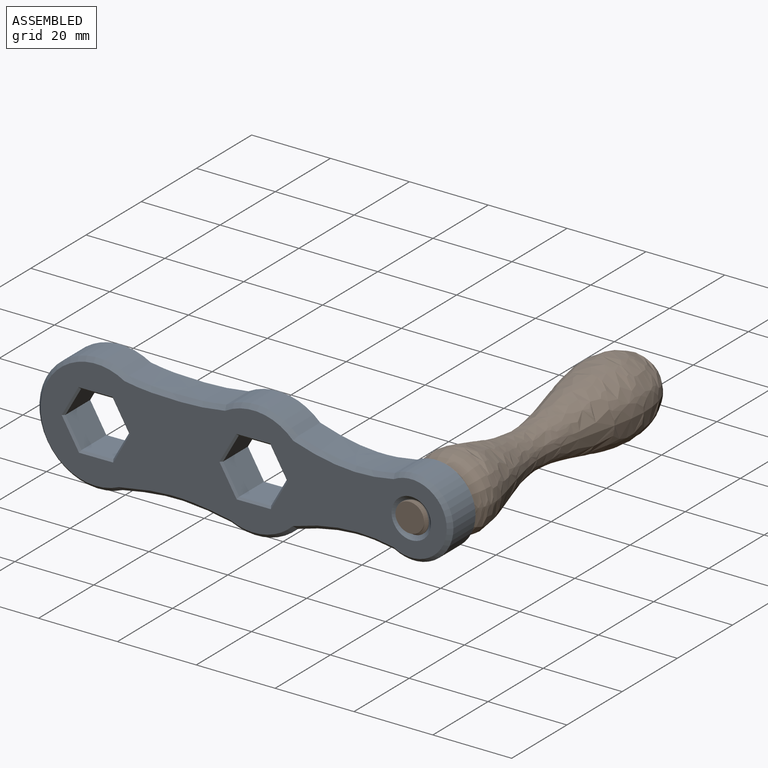
[diagram: assembled view]
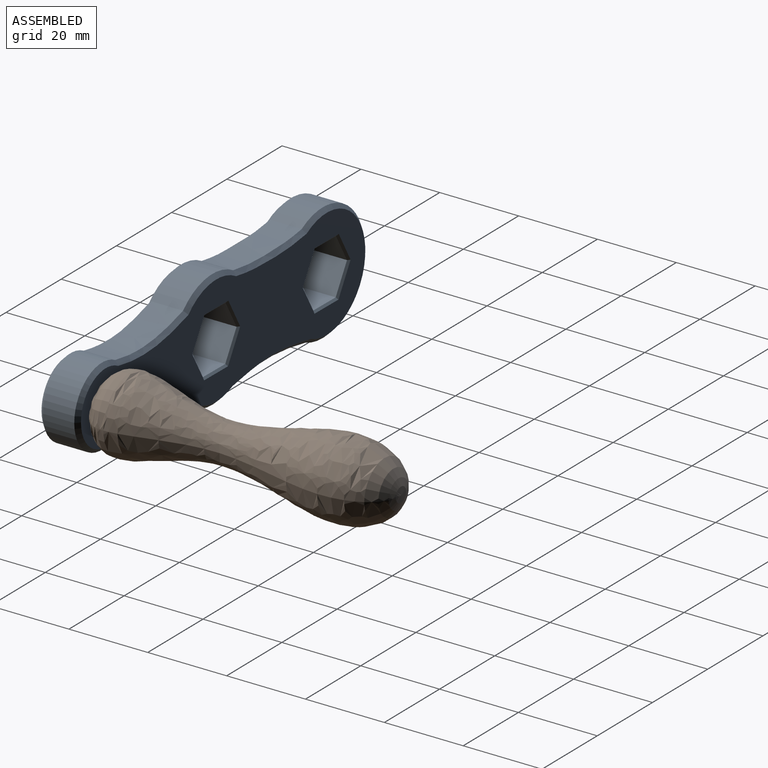
[diagram: assembled view, second angle]
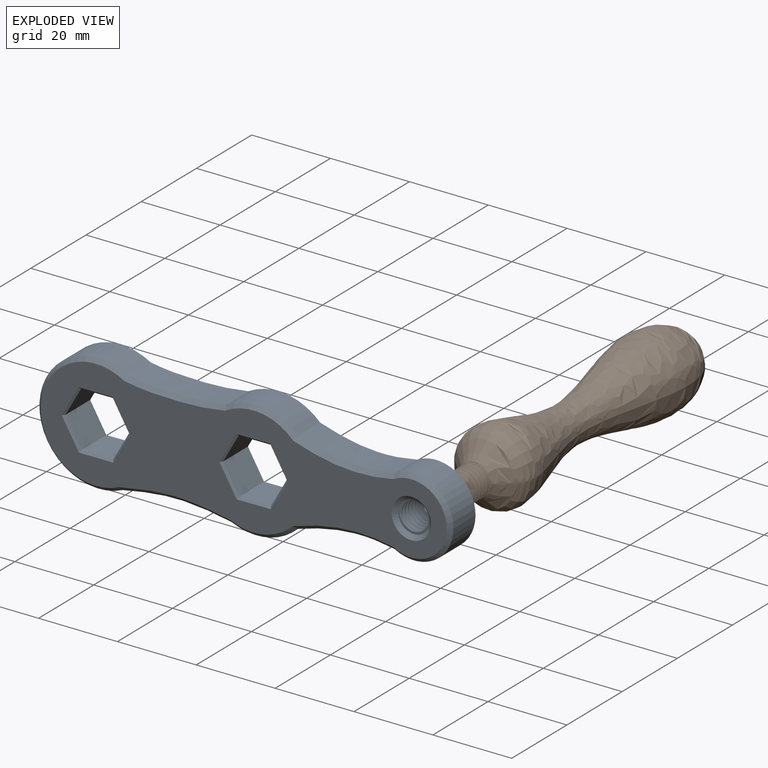
[diagram: exploded view]
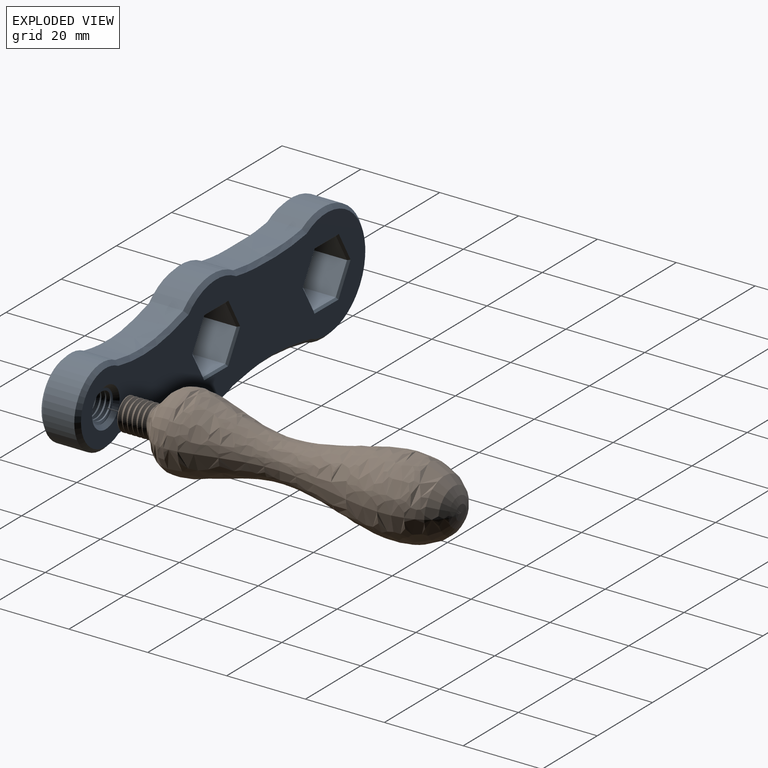
[diagram: exploded view, second angle]
ASSEMBLY  parts=2 mates=2
PART A: 72 faces, bbox 105.5x10.5x30.5 mm
  f0: plane 9x7.03mm, normal (-0.87,0,0.49), area 72.7mm2, adj f1,f19,f43,f53
  f1: plane 9x8.08mm, normal (-0.01,0,1), area 72.7mm2, adj f0,f2,f45,f55
  f2: plane 9x6.97mm, normal (0.86,0,0.51), area 72.7mm2, adj f1,f3,f44,f57
  f3: plane 9x7.03mm, normal (0.87,0,-0.49), area 72.7mm2, adj f2,f4,f42,f56
  f4: plane 9x8.08mm, normal (0.01,0,-1), area 72.7mm2, adj f3,f19,f40,f54
  f5: plane 9x8.08mm, normal (0.01,0,-1), area 72.7mm2, adj f6,f17,f47,f61
  f6: plane 9x6.97mm, normal (-0.86,0,-0.51), area 72.7mm2, adj f5,f7,f49,f63
  f7: plane 9x7.03mm, normal (-0.87,0,0.49), area 72.7mm2, adj f6,f8,f51,f62
  f8: plane 9x8.08mm, normal (-0.01,0,1), area 72.7mm2, adj f7,f9,f50,f60
  f9: plane 9x6.97mm, normal (0.86,0,0.51), area 72.7mm2, adj f8,f17,f48,f58
  f10: cylinder r=15mm len=30mm, axis (0,1,0), area 491.8mm2, adj f11,f18,f27,f35
  f11: extruded ~27.64x8mm, area 223mm2, adj f10,f12,f25,f37
  f12: cylinder r=15mm len=16.69mm, axis (0,1,0), area 144.1mm2, adj f11,f13,f23,f39
  f13: extruded ~24.62x8mm, area 200.1mm2, adj f12,f14,f24,f38
  f14: cylinder r=10mm len=20mm, axis (0,1,0), area 332.6mm2, adj f13,f15,f26,f36
  f15: extruded ~24.56x8mm, area 199.6mm2, adj f14,f16,f28,f34
  f16: cylinder r=15mm len=18.19mm, axis (0,1,0), area 157.8mm2, adj f15,f18,f30,f32
  f17: plane 9x7.03mm, normal (0.87,0,-0.49), area 72.7mm2, adj f5,f9,f46,f59
  f18: extruded ~24.79x8mm, area 199.1mm2, adj f10,f16,f29,f33
  f19: plane 9x6.97mm, normal (-0.86,0,-0.51), area 72.7mm2, adj f0,f4,f41,f52
  f20: plane 103.49x28.49mm, normal (0,-1,0), area 1654.8mm2, adj f22,f32,f33,f34,f35,f36,f37,f38
  f21: plane 103.49x28.49mm, normal (0,1,0), area 1654.8mm2, adj f23,f24,f25,f26,f27,f28,f29,f30
  f22: cone r=4mm half-angle=45deg, axis (0,-1,0), area 40mm2, adj f20,f67,f69
  f23: cone r=15mm half-angle=45deg, axis (0,-1,0), area 24.9mm2, adj f12,f21,f24,f25
  f24: bspline ~25.52x3.94mm, area 36mm2, adj f13,f21,f23,f26
  f25: bspline ~31.06x2.97mm, area 39.9mm2, adj f11,f21,f23,f27
  f26: cone r=10mm half-angle=45deg, axis (0,-1,0), area 56.1mm2, adj f14,f21,f24,f28
  f27: cone r=15mm half-angle=45deg, axis (0,-1,0), area 84.2mm2, adj f10,f21,f25,f29
  f28: bspline ~27.96x4.39mm, area 35.9mm2, adj f15,f21,f26,f30
  f29: bspline ~28.02x2.23mm, area 35.7mm2, adj f18,f21,f27,f30
  f30: cone r=15mm half-angle=45deg, axis (0,-1,0), area 27.3mm2, adj f16,f21,f28,f29
  f31: cone r=5mm half-angle=45deg, axis (0,1,0), area 40mm2, adj f21,f68,f70
  f32: cone r=14mm half-angle=45deg, axis (0,1,0), area 27.3mm2, adj f16,f20,f33,f34
  f33: bspline ~28.02x2.23mm, area 35.7mm2, adj f18,f20,f32,f35
  f34: bspline ~27.96x4.39mm, area 35.9mm2, adj f15,f20,f32,f36
  f35: cone r=14mm half-angle=45deg, axis (0,1,0), area 84.2mm2, adj f10,f20,f33,f37
  f36: cone r=9mm half-angle=45deg, axis (0,1,0), area 56.1mm2, adj f14,f20,f34,f38
  f37: bspline ~28.26x2.67mm, area 39.9mm2, adj f11,f20,f35,f39
  f38: bspline ~28.02x4.4mm, area 36mm2, adj f13,f20,f36,f39
  f39: cone r=14mm half-angle=45deg, axis (0,1,0), area 24.9mm2, adj f12,f20,f37,f38
  f40: plane 8.66x0.57mm, normal (0.01,0.71,-0.71), area 5.9mm2, adj f4,f21,f41,f42
  f41: plane 7.47x4.68mm, normal (-0.61,0.71,-0.36), area 5.9mm2, adj f19,f21,f40,f43
  f42: plane 7.54x4.56mm, normal (0.62,0.71,-0.35), area 5.9mm2, adj f3,f21,f40,f44
  f43: plane 7.54x4.56mm, normal (-0.62,0.71,0.35), area 5.9mm2, adj f0,f21,f41,f45
  f44: plane 7.47x4.68mm, normal (0.61,0.71,0.36), area 5.9mm2, adj f2,f21,f42,f45
  f45: plane 8.66x0.57mm, normal (-0.01,0.71,0.71), area 5.9mm2, adj f1,f21,f43,f44
  f46: plane 7.54x4.56mm, normal (0.62,0.71,-0.35), area 5.9mm2, adj f17,f21,f47,f48
  f47: plane 8.66x0.57mm, normal (0.01,0.71,-0.71), area 5.9mm2, adj f5,f21,f46,f49
  f48: plane 7.47x4.68mm, normal (0.61,0.71,0.36), area 5.9mm2, adj f9,f21,f46,f50
  f49: plane 7.47x4.68mm, normal (-0.61,0.71,-0.36), area 5.9mm2, adj f6,f21,f47,f51
  f50: plane 8.66x0.57mm, normal (-0.01,0.71,0.71), area 5.9mm2, adj f8,f21,f48,f51
  f51: plane 7.54x4.56mm, normal (-0.62,0.71,0.35), area 5.9mm2, adj f7,f21,f49,f50
  f52: plane 7.47x4.68mm, normal (-0.61,-0.71,-0.36), area 5.9mm2, adj f19,f20,f53,f54
  f53: plane 7.54x4.56mm, normal (-0.62,-0.71,0.35), area 5.9mm2, adj f0,f20,f52,f55
  f54: plane 8.66x0.57mm, normal (0.01,-0.71,-0.71), area 5.9mm2, adj f4,f20,f52,f56
  f55: plane 8.66x0.57mm, normal (-0.01,-0.71,0.71), area 5.9mm2, adj f1,f20,f53,f57
  f56: plane 7.54x4.56mm, normal (0.62,-0.71,-0.35), area 5.9mm2, adj f3,f20,f54,f57
  f57: plane 7.47x4.68mm, normal (0.61,-0.71,0.36), area 5.9mm2, adj f2,f20,f55,f56
  f58: plane 7.47x4.68mm, normal (0.61,-0.71,0.36), area 5.9mm2, adj f9,f20,f59,f60
  f59: plane 7.54x4.56mm, normal (0.62,-0.71,-0.35), area 5.9mm2, adj f17,f20,f58,f61
  f60: plane 8.66x0.57mm, normal (-0.01,-0.71,0.71), area 5.9mm2, adj f8,f20,f58,f62
  f61: plane 8.66x0.57mm, normal (0.01,-0.71,-0.71), area 5.9mm2, adj f5,f20,f59,f63
  f62: plane 7.54x4.56mm, normal (-0.62,-0.71,0.35), area 5.9mm2, adj f7,f20,f60,f63
  f63: plane 7.47x4.68mm, normal (-0.61,-0.71,-0.36), area 5.9mm2, adj f6,f20,f61,f62
  f64: bspline ~9.36x8.93mm, area 116.7mm2, adj f66,f67,f68,f69,f70,f71
  f65: bspline ~9.36x8.93mm, area 117.2mm2, adj f66,f67,f68,f69,f70,f71
  f66: bspline ~9.49x8.49mm, area 29.7mm2, adj f64,f65,f67,f68
  f67: plane 4.14x1.07mm, normal (0,1,0), area 0.3mm2, adj f22,f64,f65,f66
  f68: plane 3.02x2.97mm, normal (0,-1,0), area 0.3mm2, adj f31,f64,f65,f66
  f69: plane 8.31x8.01mm, normal (0,-1,0), area 7.9mm2, adj f22,f64,f65,f71
  f70: plane 8.31x8.31mm, normal (0,1,0), area 7.9mm2, adj f31,f64,f65,f71
  f71: cylinder r=3.38mm len=8mm, axis (0,-1,0), area 51.3mm2, adj f64,f65,f69,f70
PART B: 7 faces, bbox 19.7x19.7x85.9 mm
  f0: plane 7.62x7.58mm, normal (0,0,-1), area 41.1mm2, adj f1,f3,f4,f5
  f1: cylinder r=4mm len=8mm, axis (0,0,1), area 32.6mm2, adj f0,f2,f4,f5
  f2: revolved ~77x19.35mm, area 3775.9mm2, adj f1,f6
  f3: bspline ~8.85x7.68mm, area 46.1mm2, adj f0,f4,f5,f6
  f4: bspline ~9.24x9.14mm, area 114.6mm2, adj f0,f1,f3,f6
  f5: bspline ~9.24x8.93mm, area 115.4mm2, adj f0,f1,f3,f6
  f6: plane 8.35x8.35mm, normal (0,0,-1), area 9.1mm2, adj f2,f3,f4,f5
PLACE A t=(16.22,24.71,33.18)mm
PLACE B rot(axis=(-1,0,0),90deg) t=(56.22,34.9,33.12)mm
MATE cylindrical B.f1 <-> A.f14  axis (0,-1,0) through (56.22,14.71,33.12)mm
MATE planar B.f1 <-> A.f14  axis (0,-1,0) through (56.22,14.71,33.12)mm
